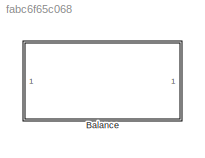
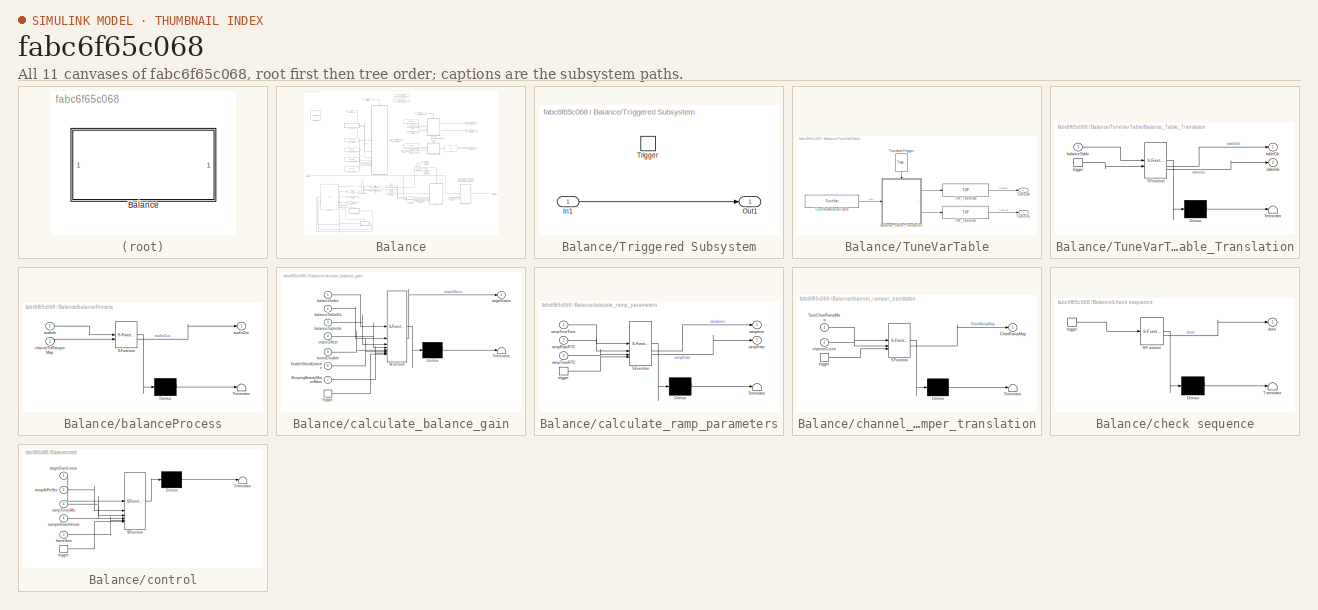
[diagram: thumbnail index - all 11 canvases of the model, root first then tree order]
MODEL slx_fabc6f65c068
KIND library
CONFIG AbsTol = auto
CONFIG EnableMultiTasking = off
CONFIG FixedStep = auto
CONFIG MaxStep = auto
CONFIG MinStep = auto
CONFIG RelTol = 1e-3
CONFIG SampleTimeConstraint = Unconstrained
CONFIG SolverName = VariableStepAuto
CONFIG StartTime = 0.0
CONFIG StopTime = 10.0
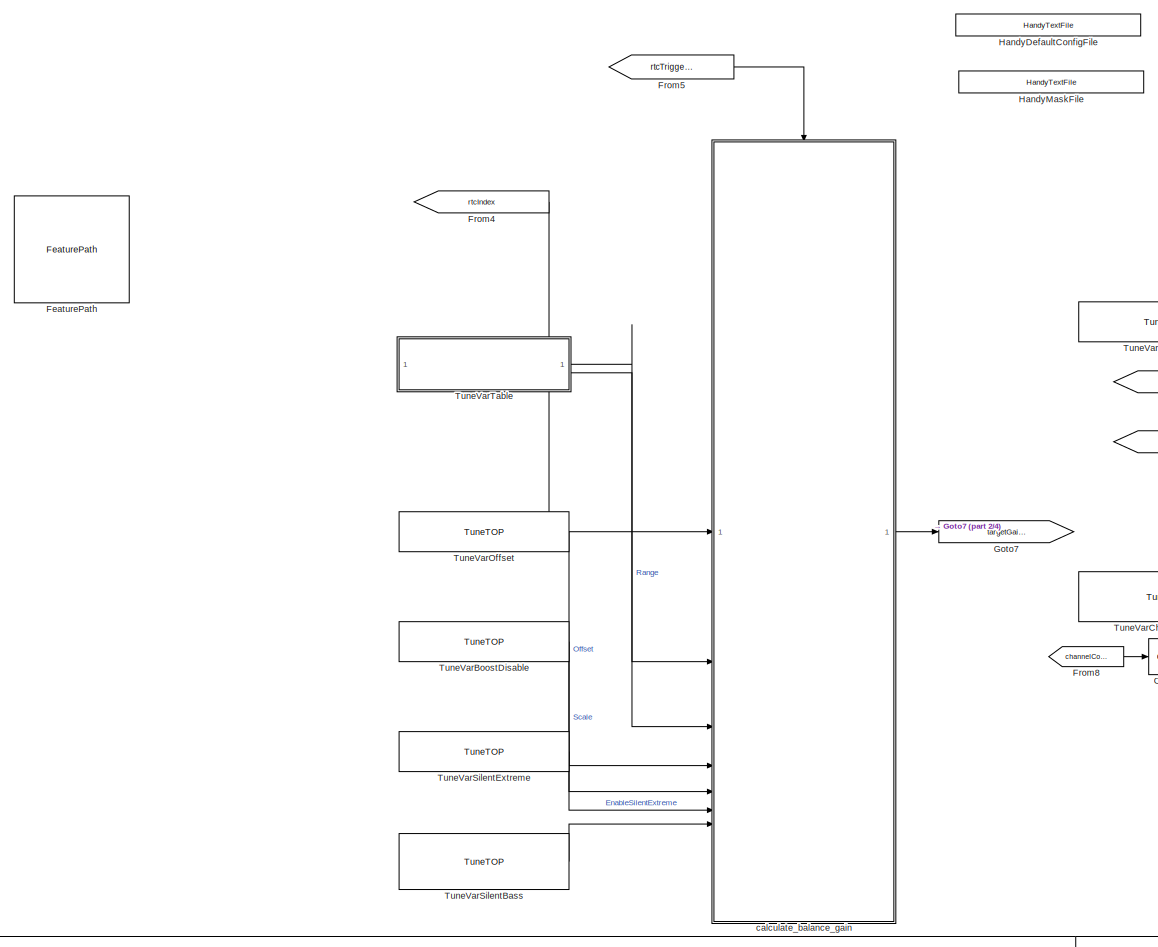
[diagram: Balance - part 1/4, top left region]
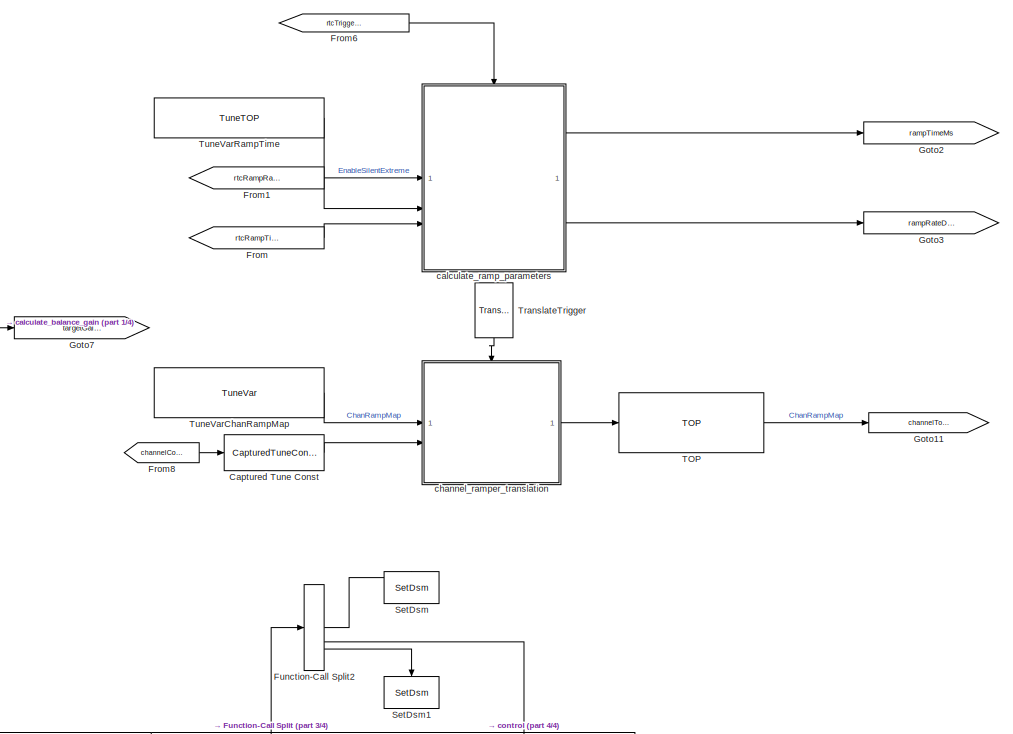
[diagram: Balance - part 2/4, middle right region]
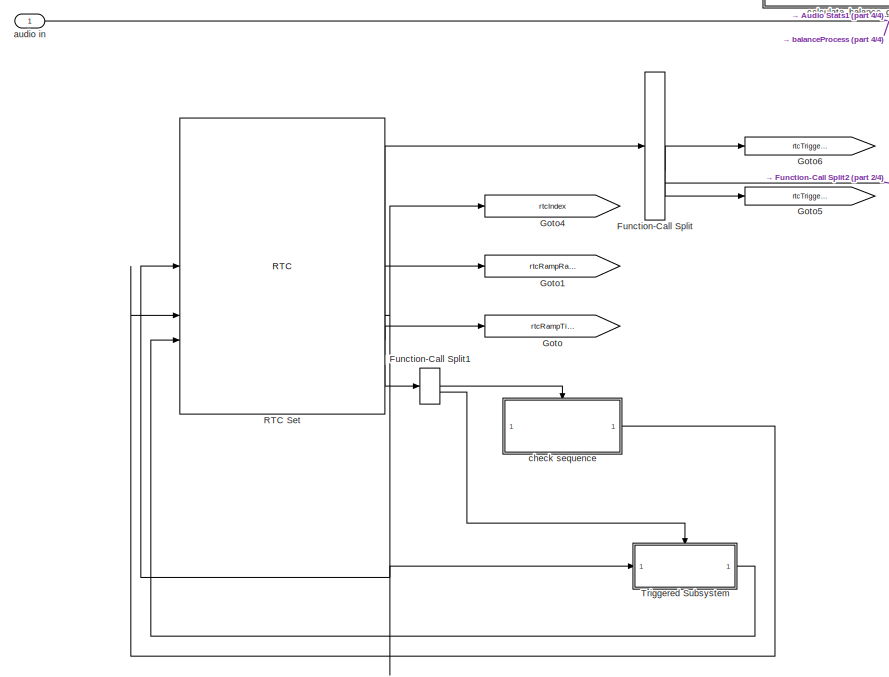
[diagram: Balance - part 3/4, bottom left region]
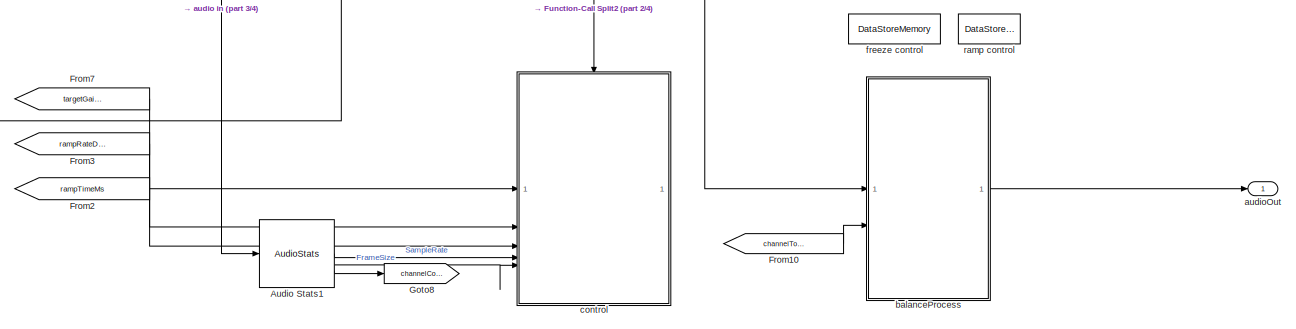
[diagram: Balance - part 4/4, bottom right region]
BLOCK [SubSystem] Balance
BLOCK [Reference] Balance/Audio Stats1  REF=AudioStats/AudioStats
  SourceBlock = AudioStats/AudioStats
  SourceProductName = Bose Talaria
  SourceType = Talaria Audio Statistics
BLOCK [Reference] Balance/Captured Tune Const  REF=TuneVar/CapturedTuneConst
  SourceBlock = TuneVar/CapturedTuneConst
  SourceProductName = Bose Talaria
  SourceType = Talaria Captured Constant
BLOCK [Reference] Balance/FeaturePath  REF=FeaturePath/FeaturePath
  SourceBlock = FeaturePath/FeaturePath
  SourceProductName = Bose Talaria
  SourceType = Talaria Feature Path
BLOCK [From] Balance/From
  GotoTag = rtcRampTimeMs
BLOCK [From] Balance/From1
  GotoTag = rtcRampRateDbPerSecond
BLOCK [From] Balance/From10
  GotoTag = channelToRamperMap
BLOCK [From] Balance/From2
  GotoTag = rampTimeMs
BLOCK [From] Balance/From3
  GotoTag = rampRateDbPerSecond
BLOCK [From] Balance/From4
  GotoTag = rtcIndex
BLOCK [From] Balance/From5
  GotoTag = rtcTriggerIndex
BLOCK [From] Balance/From6
  GotoTag = rtcTriggerRamp
BLOCK [From] Balance/From7
  GotoTag = targetGains
BLOCK [From] Balance/From8
  GotoTag = channelCount
BLOCK [FunctionCallSplit] Balance/Function-Call Split
  IconShape = distinctive
  NumOutputPorts = 3
BLOCK [FunctionCallSplit] Balance/Function-Call Split1
  IconShape = distinctive
  NumOutputPorts = 2
  OutputPortLayout = default
BLOCK [FunctionCallSplit] Balance/Function-Call Split2
  IconShape = distinctive
  NumOutputPorts = 3
  OutputPortLayout = default
BLOCK [Goto] Balance/Goto
  GotoTag = rtcRampTimeMs
BLOCK [Goto] Balance/Goto1
  GotoTag = rtcRampRateDbPerSecond
BLOCK [Goto] Balance/Goto11
  GotoTag = channelToRamperMap
BLOCK [Goto] Balance/Goto2
  GotoTag = rampTimeMs
BLOCK [Goto] Balance/Goto3
  GotoTag = rampRateDbPerSecond
BLOCK [Goto] Balance/Goto4
  GotoTag = rtcIndex
BLOCK [Goto] Balance/Goto5
  GotoTag = rtcTriggerIndex
BLOCK [Goto] Balance/Goto6
  GotoTag = rtcTriggerRamp
BLOCK [Goto] Balance/Goto7
  GotoTag = targetGains
BLOCK [Goto] Balance/Goto8
  GotoTag = channelCount
BLOCK [Reference] Balance/HandyDefaultConfigFile  REF=HandyTextFile/HandyTextFile
  SourceBlock = HandyTextFile/HandyTextFile
  SourceProductName = Bose Talaria
  SourceType = Talaria Handy Text File
BLOCK [Reference] Balance/HandyMaskFile  REF=HandyTextFile/HandyTextFile
  SourceBlock = HandyTextFile/HandyTextFile
  SourceProductName = Bose Talaria
  SourceType = Talaria Handy Text File
BLOCK [Reference] Balance/RTC Set  REF=RTC/RTC
  SourceBlock = RTC/RTC
  SourceProductName = Bose Talaria
  SourceType = Talaria RTC Receive
BLOCK [Reference] Balance/SetDsm  REF=SetDsm/SetDsm
  SourceBlock = SetDsm/SetDsm
  SourceProductName = Bose Talaria
  SourceType = Talaria Set DSM
BLOCK [Reference] Balance/SetDsm1  REF=SetDsm/SetDsm
  SourceBlock = SetDsm/SetDsm
  SourceProductName = Bose Talaria
  SourceType = Talaria Set DSM
BLOCK [Reference] Balance/TOP  REF=TOP/TOP
  SourceBlock = TOP/TOP
  SourceProductName = Bose Talaria
  SourceType = Talaria Target Overlay Parameter
BLOCK [Reference] Balance/TranslateTrigger  REF=TuneVar/TranslateTrigger
  NameLocation = left
  SourceBlock = TuneVar/TranslateTrigger
  SourceProductName = Bose Talaria
  SourceType = Talaria Translate Trigger
BLOCK [SubSystem] Balance/Triggered Subsystem
  TreatAsAtomicUnit = on
BLOCK [Inport] Balance/Triggered Subsystem/In1
BLOCK [Outport] Balance/Triggered Subsystem/Out1
BLOCK [TriggerPort] Balance/Triggered Subsystem/Trigger
  StatesWhenEnabling = held
  TriggerType = function-call
  VariantControl = Variant
BLOCK [Reference] Balance/TuneVarBoostDisable  REF=TuneVar/TuneTOP
  Description = Specifies the 'boost' value to be applied to the channels towards which the balance is moved. A value of '1' indicates no 'boost' (0 dB) ,whereas '0' indicates that the 'boost' must be computed from the 'cut' value (which gets computed from the Balance table). In order to preserve the overall energy, the following formula is used: Boost^2 + Cut^2 = 2.
  SourceBlock = TuneVar/TuneTOP
  SourceProductName = Bose Talaria
  SourceType = Talaria Trivial Tune TOP
BLOCK [Reference] Balance/TuneVarChanRampMap  REF=TuneVar/TuneVar
  Description = Specifies the ramper to which each channel is mapped. Replace the channel number with:\n'1' - 'Right'; '2' - 'Left'; '3' - 'Center'. Currently, the 'Center' group is assigned a linear gain of 1.
  SourceBlock = TuneVar/TuneVar
  SourceProductName = Bose Talaria
  SourceType = Talaria Tune Variable
BLOCK [Reference] Balance/TuneVarOffset  REF=TuneVar/TuneTOP
  Description = Defines the index at which the Balance is at the center i.e., neither towards the left or right sides.
  SourceBlock = TuneVar/TuneTOP
  SourceProductName = Bose Talaria
  SourceType = Talaria Trivial Tune TOP
BLOCK [Reference] Balance/TuneVarRampTime  REF=TuneVar/TuneTOP
  Description = Specifies the default ramp time for the rampers.
  SourceBlock = TuneVar/TuneTOP
  SourceProductName = Bose Talaria
  SourceType = Talaria Trivial Tune TOP
BLOCK [Reference] Balance/TuneVarSilentBass  REF=TuneVar/TuneTOP
  SourceBlock = TuneVar/TuneTOP
  SourceProductName = Bose Talaria
  SourceType = Talaria Trivial Tune TOP
BLOCK [Reference] Balance/TuneVarSilentExtreme  REF=TuneVar/TuneTOP
  Description = 0 implies no special handling\n1 implies special muting of the "cut" channel, in addition to the center channels) when the input control is at its extremes (lowest or highest index is provided)
  SourceBlock = TuneVar/TuneTOP
  SourceProductName = Bose Talaria
  SourceType = Talaria Trivial Tune TOP
BLOCK [SubSystem] Balance/TuneVarTable
  Description = Given in dB, sets the maximum impact of balance processing among channels.
BLOCK [SubSystem] Balance/TuneVarTable/Balance_Table_Translation
  ErrorFcn = Stateflow.Translate.translate
  PermitHierarchicalResolution = ExplicitOnly
  SFBlockType = MATLAB Function
  TreatAsAtomicUnit = on
BLOCK [Demux] Balance/TuneVarTable/Balance_Table_Translation/ Demux 
  Outputs = 1
BLOCK [S-Function] Balance/TuneVarTable/Balance_Table_Translation/ SFunction 
  EnableBusSupport = off
  FunctionName = sf_sfun
  PortCounts = [2 3]
  SFcnIsStateOwnerBlock = off
  SFunctionDeploymentMode = off
  Tag = Stateflow S-Function 9
BLOCK [Terminator] Balance/TuneVarTable/Balance_Table_Translation/ Terminator 
BLOCK [Inport] Balance/TuneVarTable/Balance_Table_Translation/balanceTable
BLOCK [Outport] Balance/TuneVarTable/Balance_Table_Translation/tableDb
  VectorParamsAs1DForOutWhenUnconnected = off
BLOCK [Outport] Balance/TuneVarTable/Balance_Table_Translation/tableIdx
  Port = 2
  VectorParamsAs1DForOutWhenUnconnected = off
BLOCK [TriggerPort] Balance/TuneVarTable/Balance_Table_Translation/trigger
  ShowOutputPort = on
  StatesWhenEnabling = held
  TriggerType = function-call
  VariantControl = Variant
BLOCK [Reference] Balance/TuneVarTable/TOP_TableIDb  REF=TOP/TOP
  SourceBlock = TOP/TOP
  SourceProductName = Bose Talaria
  SourceType = Talaria Target Overlay Parameter
BLOCK [Reference] Balance/TuneVarTable/TOP_TableIdx  REF=TOP/TOP
  SourceBlock = TOP/TOP
  SourceProductName = Bose Talaria
  SourceType = Talaria Target Overlay Parameter
BLOCK [Outport] Balance/TuneVarTable/TableDb
  VectorParamsAs1DForOutWhenUnconnected = off
BLOCK [Outport] Balance/TuneVarTable/TableIdx
  Port = 2
  VectorParamsAs1DForOutWhenUnconnected = off
BLOCK [Reference] Balance/TuneVarTable/TranslateTrigger  REF=TuneVar/TranslateTrigger
  NameLocation = left
  SourceBlock = TuneVar/TranslateTrigger
  SourceProductName = Bose Talaria
  SourceType = Talaria Translate Trigger
BLOCK [Reference] Balance/TuneVarTable/TuneVarBalanceTable  REF=TuneVar/TuneVar
  Description = Define the balance curve using a table, with the first column being the list of indices and the second column being the corresponding balance gains in dB. Gain values for indices in between the elements in the table are linearly interpolated.
  SourceBlock = TuneVar/TuneVar
  SourceProductName = Bose Talaria
  SourceType = Talaria Tune Variable
BLOCK [Inport] Balance/audio in
BLOCK [Outport] Balance/audioOut
  VectorParamsAs1DForOutWhenUnconnected = off
BLOCK [SubSystem] Balance/balanceProcess
  ErrorFcn = Stateflow.Translate.translate
  PermitHierarchicalResolution = ExplicitOnly
  SFBlockType = MATLAB Function
  TreatAsAtomicUnit = on
BLOCK [Demux] Balance/balanceProcess/ Demux 
  Outputs = 1
BLOCK [S-Function] Balance/balanceProcess/ SFunction 
  EnableBusSupport = off
  FunctionName = sf_sfun
  Parameters = MaskNumRampers
  PortCounts = [2 2]
  SFcnIsStateOwnerBlock = off
  SFunctionDeploymentMode = off
  Tag = Stateflow S-Function 10
BLOCK [Terminator] Balance/balanceProcess/ Terminator 
BLOCK [Inport] Balance/balanceProcess/audioIn
BLOCK [Outport] Balance/balanceProcess/audioOut
  VectorParamsAs1DForOutWhenUnconnected = off
BLOCK [Inport] Balance/balanceProcess/channelToRamperMap
  Port = 2
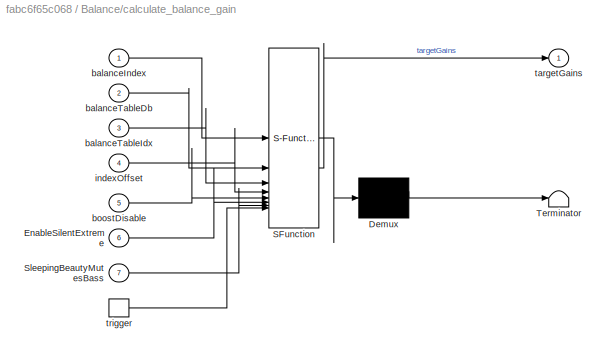
BLOCK [SubSystem] Balance/calculate_balance_gain
  ErrorFcn = Stateflow.Translate.translate
  PermitHierarchicalResolution = ExplicitOnly
  SFBlockType = MATLAB Function
  TreatAsAtomicUnit = on
BLOCK [Demux] Balance/calculate_balance_gain/ Demux 
  Outputs = 1
BLOCK [S-Function] Balance/calculate_balance_gain/ SFunction 
  EnableBusSupport = off
  FunctionName = sf_sfun
  Parameters = MaskNumRampers
  PortCounts = [8 2]
  SFcnIsStateOwnerBlock = off
  SFunctionDeploymentMode = off
  Tag = Stateflow S-Function 11
BLOCK [Terminator] Balance/calculate_balance_gain/ Terminator 
BLOCK [Inport] Balance/calculate_balance_gain/EnableSilentExtreme
  Port = 6
BLOCK [Inport] Balance/calculate_balance_gain/SleepingBeautyMutesBass
  Port = 7
BLOCK [Inport] Balance/calculate_balance_gain/balanceIndex
BLOCK [Inport] Balance/calculate_balance_gain/balanceTableDb
  Port = 2
BLOCK [Inport] Balance/calculate_balance_gain/balanceTableIdx
  Port = 3
BLOCK [Inport] Balance/calculate_balance_gain/boostDisable
  Port = 5
BLOCK [Inport] Balance/calculate_balance_gain/indexOffset
  Port = 4
BLOCK [Outport] Balance/calculate_balance_gain/targetGains
  VectorParamsAs1DForOutWhenUnconnected = off
BLOCK [TriggerPort] Balance/calculate_balance_gain/trigger
  ShowOutputPort = on
  StatesWhenEnabling = held
  TriggerType = function-call
  VariantControl = Variant
BLOCK [SubSystem] Balance/calculate_ramp_parameters
  ErrorFcn = Stateflow.Translate.translate
  PermitHierarchicalResolution = ExplicitOnly
  SFBlockType = MATLAB Function
  TreatAsAtomicUnit = on
BLOCK [Demux] Balance/calculate_ramp_parameters/ Demux 
  Outputs = 1
BLOCK [S-Function] Balance/calculate_ramp_parameters/ SFunction 
  EnableBusSupport = off
  FunctionName = sf_sfun
  Parameters = rampRateBounds,rampTimeBounds
  PortCounts = [4 3]
  SFcnIsStateOwnerBlock = off
  SFunctionDeploymentMode = off
  Tag = Stateflow S-Function 12
BLOCK [Terminator] Balance/calculate_ramp_parameters/ Terminator 
BLOCK [Outport] Balance/calculate_ramp_parameters/rampRate
  Port = 2
  VectorParamsAs1DForOutWhenUnconnected = off
BLOCK [Inport] Balance/calculate_ramp_parameters/rampRateRTC
  Port = 2
BLOCK [Inport] Balance/calculate_ramp_parameters/rampTimeRTC
  Port = 3
BLOCK [Inport] Balance/calculate_ramp_parameters/rampTimeTune
BLOCK [Outport] Balance/calculate_ramp_parameters/ramptime
  VectorParamsAs1DForOutWhenUnconnected = off
BLOCK [TriggerPort] Balance/calculate_ramp_parameters/trigger
  ShowOutputPort = on
  StatesWhenEnabling = held
  TriggerType = function-call
  VariantControl = Variant
BLOCK [SubSystem] Balance/channel_ramper_translation
  ErrorFcn = Stateflow.Translate.translate
  PermitHierarchicalResolution = ExplicitOnly
  SFBlockType = MATLAB Function
  TreatAsAtomicUnit = on
BLOCK [Demux] Balance/channel_ramper_translation/ Demux 
  Outputs = 1
BLOCK [S-Function] Balance/channel_ramper_translation/ SFunction 
  EnableBusSupport = off
  FunctionName = sf_sfun
  Parameters = MaskNumRampers
  PortCounts = [3 2]
  SFcnIsStateOwnerBlock = off
  SFunctionDeploymentMode = off
  Tag = Stateflow S-Function 7
BLOCK [Terminator] Balance/channel_ramper_translation/ Terminator 
BLOCK [Outport] Balance/channel_ramper_translation/ChanRampMap
  VectorParamsAs1DForOutWhenUnconnected = off
BLOCK [Inport] Balance/channel_ramper_translation/TuneChanRampMap
BLOCK [Inport] Balance/channel_ramper_translation/channelCount
  Port = 2
BLOCK [TriggerPort] Balance/channel_ramper_translation/trigger
  ShowOutputPort = on
  StatesWhenEnabling = held
  TriggerType = function-call
  VariantControl = Variant
BLOCK [SubSystem] Balance/check sequence
  ErrorFcn = Stateflow.Translate.translate
  PermitHierarchicalResolution = ExplicitOnly
  SFBlockType = MATLAB Function
  TreatAsAtomicUnit = on
BLOCK [Demux] Balance/check sequence/ Demux 
  Outputs = 1
BLOCK [S-Function] Balance/check sequence/ SFunction 
  EnableBusSupport = off
  FunctionName = sf_sfun
  Parameters = MaskNumRampers
  PortCounts = [1 2]
  SFcnIsStateOwnerBlock = off
  SFunctionDeploymentMode = off
  Tag = Stateflow S-Function 13
BLOCK [Terminator] Balance/check sequence/ Terminator 
BLOCK [Outport] Balance/check sequence/done
  VectorParamsAs1DForOutWhenUnconnected = off
BLOCK [TriggerPort] Balance/check sequence/trigger
  ShowOutputPort = on
  StatesWhenEnabling = held
  TriggerType = function-call
  VariantControl = Variant
BLOCK [SubSystem] Balance/control
  ErrorFcn = Stateflow.Translate.translate
  PermitHierarchicalResolution = ExplicitOnly
  RTWSystemCode = Reusable function
  SFBlockType = MATLAB Function
  TreatAsAtomicUnit = on
BLOCK [Demux] Balance/control/ Demux 
  Outputs = 1
BLOCK [S-Function] Balance/control/ SFunction 
  EnableBusSupport = off
  FunctionName = sf_sfun
  Parameters = MaskNumRampers
  PortCounts = [6 1]
  SFcnIsStateOwnerBlock = off
  SFunctionDeploymentMode = off
  Tag = Stateflow S-Function 14
BLOCK [Terminator] Balance/control/ Terminator 
BLOCK [Inport] Balance/control/frameSize
  Port = 5
BLOCK [Inport] Balance/control/rampTimesMs
  Port = 3
BLOCK [Inport] Balance/control/rampdbPerSec
  Port = 2
BLOCK [Inport] Balance/control/sampleRateInHertz
  Port = 4
BLOCK [Inport] Balance/control/targetGainLinear
BLOCK [TriggerPort] Balance/control/trigger
  ShowOutputPort = on
  StatesWhenEnabling = held
  TriggerType = function-call
  VariantControl = Variant
BLOCK [DataStoreMemory] Balance/freeze control
  DataStoreName = Freeze
  EmbeddedSignalClassName = Bose.Signal
  OutDataTypeStr = uint32
  ShowAdditionalParam = off
  SignalType = real
BLOCK [DataStoreMemory] Balance/ramp control
  DataStoreName = Rampers
  EmbeddedSignalClassName = Bose.Signal
  InitialValue = Config.DlgRamperInit
  OutDataTypeStr = Bus: rgain_bus
  ShowAdditionalParam = off
  SignalType = real
CHART Balance/check sequence states=1 transitions=1
  STATE_LABEL 'eML_blk_kernel()'
  STATE_LABEL 'SCRIPT:\nfunction done = GetCompletedSequence(MaskNumRampers)\n% Function which checks if the notification sequence\n% has completed successfully \n\nglobal Rampers;\n\n% Assume the work is complete until proven otherwise\ndone = true;\n\nfor i=1:MaskNumRampers\n   if (Rampers(i).targetGain ~= Rampers(i).currentGain)\n       done = false; % just proved otherwise\n       break;\n   end\nend\n\n'
CHART Balance/control states=1 transitions=1
  STATE_LABEL 'eML_blk_kernel()'
  STATE_LABEL "SCRIPT:\nfunction control(...\n     targetGainLinear, rampdbPerSec, rampTimesMs, sampleRateInHertz, ...\n     frameSize, ... % inputs\n     MaskNumRampers) % parameters\n%#codegen\n% CONTROL LOGIC:\n% Shift of 'balance' between the 'Right' and 'Left' channel groups is\n% achieved by multiplying the corresponding 'cut' or 'boost' gain. As the\n% index increases from 0, the balance shifts from left to right....<+3608ch>"
CHART Balance/channel_ramper_translation states=1 transitions=1
  STATE_LABEL 'eML_blk_kernel()'
  STATE_LABEL "SCRIPT:\nfunction ChanRampMap  = fcn(TuneChanRampMap, channelCount, ... % inputs\n    MaskNumRampers) % parameters\n\n% Verifies if each channel is assigned to one of the 4 possible rampers. \n% Acceptable rampers:\n% 1: left\n% 2: right\n% 3: center\n% 4: unused\n\nargName = 'Balance';\n\n% Ensure each channel is present in the map\ninputMapWidth = numel(TuneChanRampMap.Value);\nif (inputMapWidth ~= channelCoun...<+981ch>"
CHART Balance/TuneVarTable/Balance_Table_Translation states=1 transitions=1
  STATE_LABEL 'eML_blk_kernel()'
  STATE_LABEL "SCRIPT:\nfunction [tableDb, tableIdx] = fcn(balanceTable)\n%#codegen\n\n% Set up the size and datatype of our TOP outputs:\nmaxTableSize = numel(balanceTable.Value) / 2;\nidxType = 'uint8';\nidxStorageType = 'uint32';\ndbType = 'single';\ntableIdx = zeros(1,maxTableSize,idxStorageType);\ntableDb = zeros(1,maxTableSize,dbType);\n\n% separate the pairs into their index and value components\ngivenPairs = balanceT...<+990ch>"
CHART Balance/balanceProcess states=1 transitions=1
  STATE_LABEL 'eML_blk_kernel()'
  STATE_LABEL 'SCRIPT:\nfunction audioOut  = balanceProcess(audioIn, channelToRamperMap, ... % inputs\n    MaskNumRampers)  % parameters\n\n% Applies the Left and Right gains to the respective channels via multiple\n%   rampers\n% Inputs:\n%  audioIn: Input audio\n%  channelToRamperMap: Input channels mapped to their corresponding ramper.\n%  MaskNumRampers: Number of rampers (set in the Mask file) = 4\n\n% Data Store obje...<+1703ch>'
CHART Balance/calculate_balance_gain states=1 transitions=1
  STATE_LABEL 'eML_blk_kernel()'
  STATE_LABEL "SCRIPT:\nfunction targetGains  = Calculate_Balance_Gain(balanceIndex, ...\n    balanceTableDb, balanceTableIdx, ...\n    indexOffset, boostDisable, EnableSilentExtreme, SleepingBeautyMutesBass, MaskNumRampers)\n\n% Computes the balance gains for the 'left' and 'right' channel groups. \n% Based on the position of the balance index in 'balanceTableIdx', the \n% corresponding 'cut' gain is computed from the...<+2847ch>"
CHART Balance/calculate_ramp_parameters states=1 transitions=1
  STATE_LABEL 'eML_blk_kernel()'
  STATE_LABEL 'SCRIPT:\nfunction [ramptime, rampRate]  = calculate_ramp_parameters(...\n    rampTimeTune, rampRateRTC,rampTimeRTC, ... % inputs\n    rampRateBounds, rampTimeBounds) % parameters\n\n% Ramp time and rate are provided to the block through RTC messages. However \n% in case neither of them are provided, the block will use the default ramp \n% time given in the tune variables.\n\n    ramptime = single(rampTimeT...<+380ch>'
CHART  states=0 transitions=0
CHART  states=0 transitions=0
CHART  states=0 transitions=0
CHART  states=0 transitions=0
CHART  states=0 transitions=0
CHART  states=0 transitions=0
CHART  states=0 transitions=0
